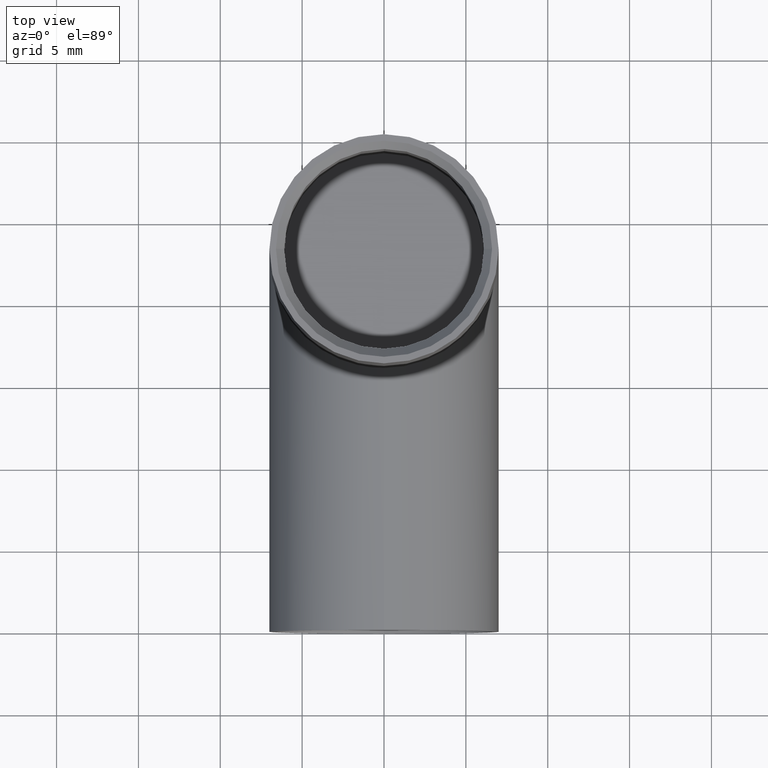
[diagram: clean part render]
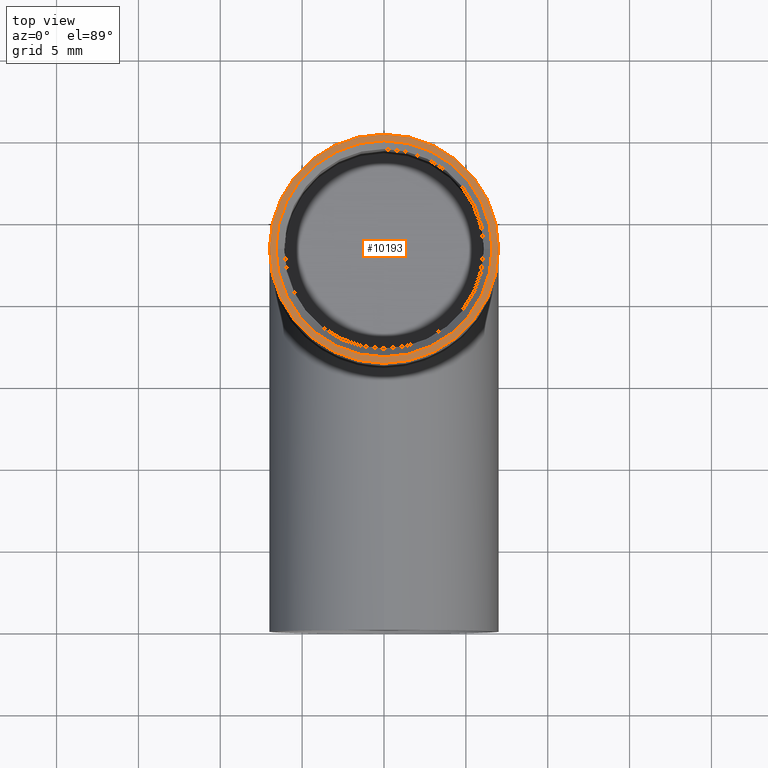
[diagram: same view with one face highlighted and labeled with its STEP entity id]
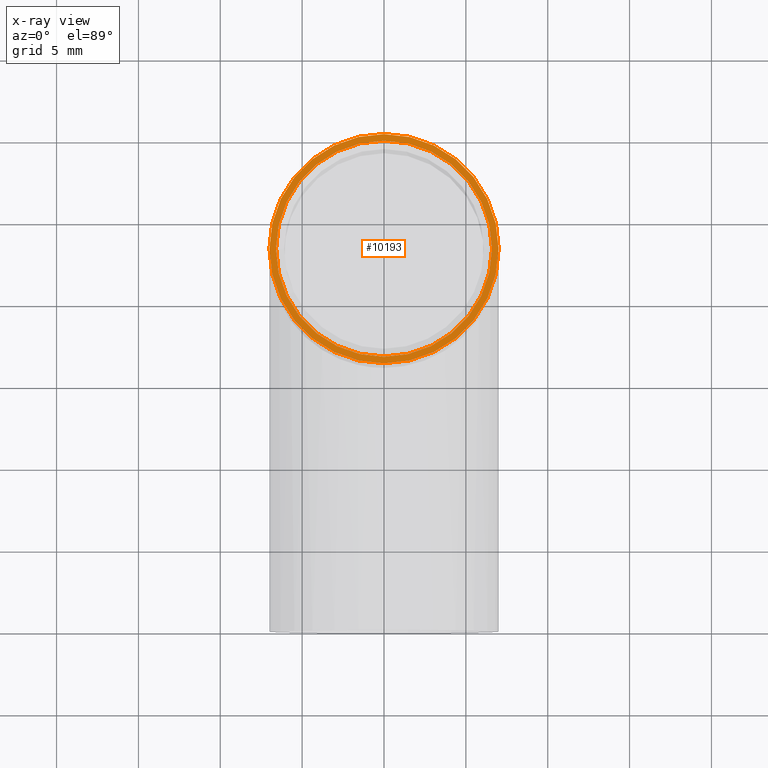
[diagram: x-ray of the same camera — body ghosted, the highlighted face saturated]
A machine part, top view. The second image highlights one B-rep face of the part: STEP entity #10193.
The next image is the same camera in x-ray: the body ghosted, the highlighted face saturated — about 0% of this face is hidden behind the body in this view.
In plain terms, the highlighted planar face has unit normal (0, 0, 1).
Its self-contained STEP definition (entity closure, byte-faithful):
#78 = AXIS2_PLACEMENT_3D ( 'NONE', #9920, #10045, #7966 ) ;
#112 = DIRECTION ( 'NONE',  ( -0.000000000000000000, -0.000000000000000000, -1.000000000000000000 ) ) ;
#537 = AXIS2_PLACEMENT_3D ( 'NONE', #9181, #560, #12077 ) ;
#560 = DIRECTION ( 'NONE',  ( -0.000000000000000000, -0.000000000000000000, -1.000000000000000000 ) ) ;
#1022 = VERTEX_POINT ( 'NONE', #10360 ) ;
#1079 = CIRCLE ( 'NONE', #9910, 7.000000000000000000 ) ;
#1105 = CIRCLE ( 'NONE', #10456, 6.600000000000008527 ) ;
#2016 = DIRECTION ( 'NONE',  ( 1.000000000000000000, 0.000000000000000000, 0.000000000000000000 ) ) ;
#2551 = FACE_BOUND ( 'NONE', #10194, .T. ) ;
#3215 = DIRECTION ( 'NONE',  ( -0.000000000000000000, -0.000000000000000000, -1.000000000000000000 ) ) ;
#3268 = EDGE_LOOP ( 'NONE', ( #12129, #5599 ) ) ;
#3642 = CARTESIAN_POINT ( 'NONE',  ( 0.000000000000000000, 22.99999999999998579, 22.99999999999999645 ) ) ;
#3706 = EDGE_CURVE ( 'NONE', #1022, #10377, #12344, .T. ) ;
#4174 = DIRECTION ( 'NONE',  ( 1.000000000000000000, 0.000000000000000000, 0.000000000000000000 ) ) ;
#4529 = DIRECTION ( 'NONE',  ( 1.000000000000000000, 0.000000000000000000, 0.000000000000000000 ) ) ;
#4866 = AXIS2_PLACEMENT_3D ( 'NONE', #4919, #112, #2016 ) ;
#4871 = EDGE_CURVE ( 'NONE', #10781, #9037, #5722, .T. ) ;
#4919 = CARTESIAN_POINT ( 'NONE',  ( 0.000000000000000000, 23.00000000000000000, 22.99999999999999645 ) ) ;
#5083 = EDGE_CURVE ( 'NONE', #10377, #1022, #1105, .T. ) ;
#5599 = ORIENTED_EDGE ( 'NONE', *, *, #6891, .F. ) ;
#5722 = CIRCLE ( 'NONE', #4866, 7.000000000000000000 ) ;
#6024 = ORIENTED_EDGE ( 'NONE', *, *, #3706, .T. ) ;
#6388 = CARTESIAN_POINT ( 'NONE',  ( -6.600000000000008527, 22.99999999999998579, 22.99999999999999645 ) ) ;
#6645 = CARTESIAN_POINT ( 'NONE',  ( 7.000000000000000000, 23.00000000000000000, 22.99999999999999645 ) ) ;
#6891 = EDGE_CURVE ( 'NONE', #9037, #10781, #1079, .T. ) ;
#6966 = FACE_OUTER_BOUND ( 'NONE', #3268, .T. ) ;
#7004 = CARTESIAN_POINT ( 'NONE',  ( 0.000000000000000000, 23.00000000000000000, 22.99999999999999645 ) ) ;
#7035 = PLANE ( 'NONE',  #78 ) ;
#7966 = DIRECTION ( 'NONE',  ( 1.000000000000000000, 0.000000000000000000, -0.000000000000000000 ) ) ;
#8448 = CARTESIAN_POINT ( 'NONE',  ( -7.000000000000000000, 23.00000000000000000, 22.99999999999999645 ) ) ;
#9037 = VERTEX_POINT ( 'NONE', #8448 ) ;
#9181 = CARTESIAN_POINT ( 'NONE',  ( 0.000000000000000000, 22.99999999999998579, 22.99999999999999645 ) ) ;
#9910 = AXIS2_PLACEMENT_3D ( 'NONE', #7004, #3215, #4174 ) ;
#9920 = CARTESIAN_POINT ( 'NONE',  ( 0.000000000000000000, 23.00000000000000000, 22.99999999999999645 ) ) ;
#9996 = ORIENTED_EDGE ( 'NONE', *, *, #5083, .T. ) ;
#10045 = DIRECTION ( 'NONE',  ( 0.000000000000000000, 0.000000000000000000, 1.000000000000000000 ) ) ;
#10193 = ADVANCED_FACE ( 'NONE', ( #2551, #6966 ), #7035, .T. ) ;
#10194 = EDGE_LOOP ( 'NONE', ( #6024, #9996 ) ) ;
#10360 = CARTESIAN_POINT ( 'NONE',  ( 6.600000000000008527, 22.99999999999998579, 22.99999999999999645 ) ) ;
#10377 = VERTEX_POINT ( 'NONE', #6388 ) ;
#10456 = AXIS2_PLACEMENT_3D ( 'NONE', #3642, #12256, #4529 ) ;
#10781 = VERTEX_POINT ( 'NONE', #6645 ) ;
#12077 = DIRECTION ( 'NONE',  ( 1.000000000000000000, 0.000000000000000000, 0.000000000000000000 ) ) ;
#12129 = ORIENTED_EDGE ( 'NONE', *, *, #4871, .F. ) ;
#12256 = DIRECTION ( 'NONE',  ( -0.000000000000000000, -0.000000000000000000, -1.000000000000000000 ) ) ;
#12344 = CIRCLE ( 'NONE', #537, 6.600000000000008527 ) ;